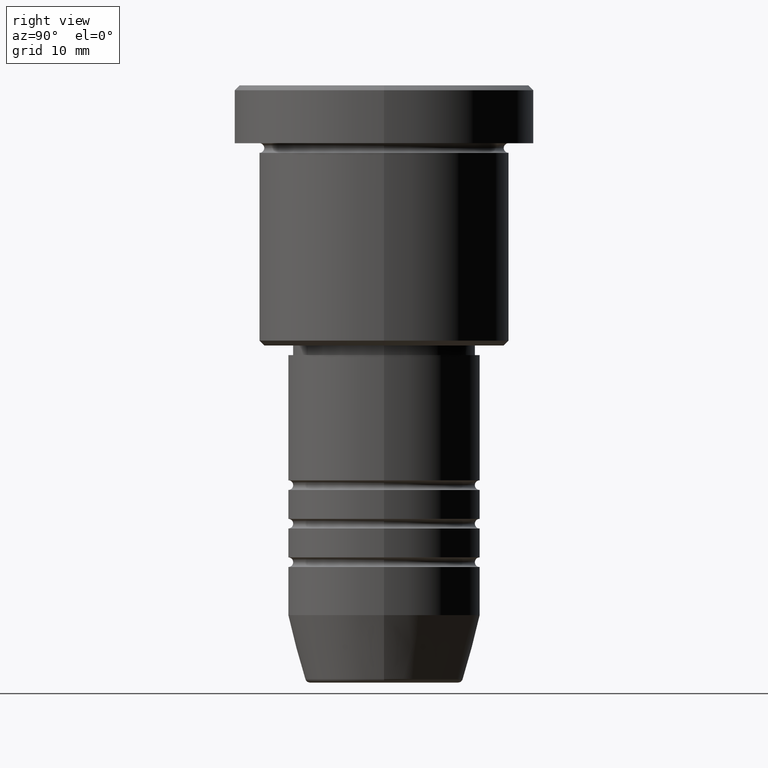
[diagram: clean part render]
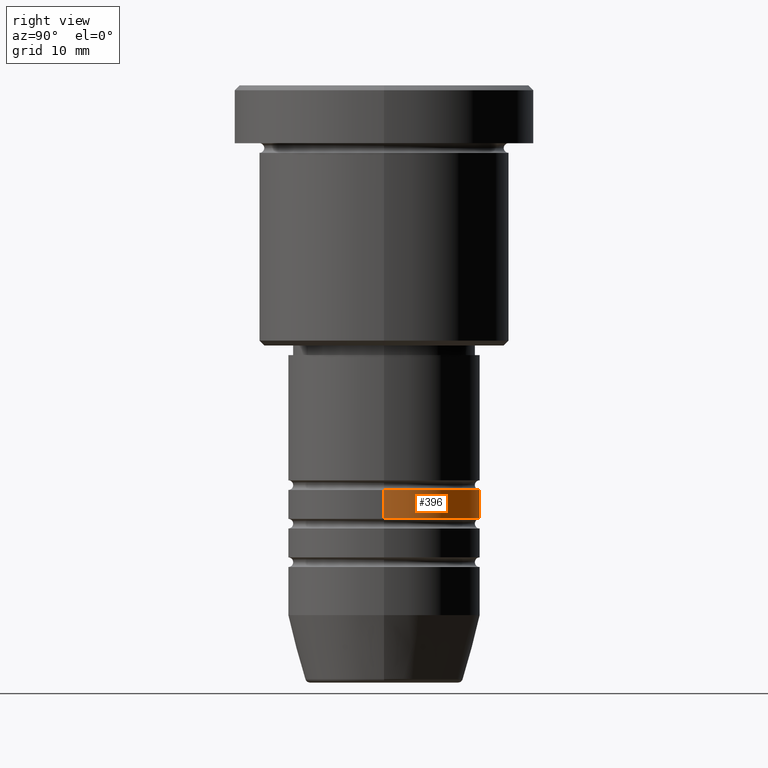
[diagram: same view with one face highlighted and labeled with its STEP entity id]
A machine part, right view. The second image highlights one B-rep face of the part: STEP entity #396.
In plain terms, the highlighted cylindrical surface (partial cylindrical patch) has radius 10 mm, axis along (-0, -0, 1).
Its self-contained STEP definition (entity closure, byte-faithful):
#17 = VECTOR ( 'NONE', #909, 1000.000000000000000 ) ;
#90 = DIRECTION ( 'NONE',  ( -0.000000000000000000, -0.000000000000000000, 1.000000000000000000 ) ) ;
#136 = EDGE_CURVE ( 'NONE', #966, #533, #643, .T. ) ;
#158 = ORIENTED_EDGE ( 'NONE', *, *, #878, .F. ) ;
#196 = DIRECTION ( 'NONE',  ( 1.000000000000000000, 0.000000000000000000, 0.000000000000000000 ) ) ;
#207 = CIRCLE ( 'NONE', #1074, 10.00000000000000000 ) ;
#209 = DIRECTION ( 'NONE',  ( -0.000000000000000000, -0.000000000000000000, 1.000000000000000000 ) ) ;
#263 = EDGE_CURVE ( 'NONE', #1103, #966, #286, .T. ) ;
#286 = CIRCLE ( 'NONE', #440, 10.00000000000000178 ) ;
#343 = DIRECTION ( 'NONE',  ( 1.000000000000000000, 0.000000000000000000, 0.000000000000000000 ) ) ;
#372 = CARTESIAN_POINT ( 'NONE',  ( -10.00000000000000178, 1.224646799147353454E-15, 0.000000000000000000 ) ) ;
#394 = VERTEX_POINT ( 'NONE', #599 ) ;
#396 = ADVANCED_FACE ( 'NONE', ( #514 ), #1140, .T. ) ;
#440 = AXIS2_PLACEMENT_3D ( 'NONE', #655, #209, #573 ) ;
#474 = DIRECTION ( 'NONE',  ( -0.000000000000000000, -0.000000000000000000, 1.000000000000000000 ) ) ;
#514 = FACE_OUTER_BOUND ( 'NONE', #980, .T. ) ;
#533 = VERTEX_POINT ( 'NONE', #1169 ) ;
#573 = DIRECTION ( 'NONE',  ( 1.000000000000000000, 0.000000000000000000, 0.000000000000000000 ) ) ;
#574 = CARTESIAN_POINT ( 'NONE',  ( 10.00000000000000178, 0.000000000000000000, -44.99999999999990763 ) ) ;
#599 = CARTESIAN_POINT ( 'NONE',  ( 10.00000000000000000, 0.000000000000000000, -41.99999999999989342 ) ) ;
#600 = ORIENTED_EDGE ( 'NONE', *, *, #136, .T. ) ;
#643 = LINE ( 'NONE', #372, #935 ) ;
#655 = CARTESIAN_POINT ( 'NONE',  ( 0.000000000000000000, 0.000000000000000000, -44.99999999999990763 ) ) ;
#664 = AXIS2_PLACEMENT_3D ( 'NONE', #1078, #704, #343 ) ;
#704 = DIRECTION ( 'NONE',  ( -0.000000000000000000, -0.000000000000000000, 1.000000000000000000 ) ) ;
#720 = ORIENTED_EDGE ( 'NONE', *, *, #819, .F. ) ;
#734 = CARTESIAN_POINT ( 'NONE',  ( -10.00000000000000178, 1.224646799147353454E-15, -44.99999999999990763 ) ) ;
#819 = EDGE_CURVE ( 'NONE', #1103, #394, #880, .T. ) ;
#847 = CARTESIAN_POINT ( 'NONE',  ( 0.000000000000000000, 0.000000000000000000, -41.99999999999989342 ) ) ;
#878 = EDGE_CURVE ( 'NONE', #394, #533, #207, .T. ) ;
#880 = LINE ( 'NONE', #985, #17 ) ;
#909 = DIRECTION ( 'NONE',  ( -0.000000000000000000, -0.000000000000000000, 1.000000000000000000 ) ) ;
#935 = VECTOR ( 'NONE', #90, 1000.000000000000000 ) ;
#966 = VERTEX_POINT ( 'NONE', #734 ) ;
#980 = EDGE_LOOP ( 'NONE', ( #1071, #600, #158, #720 ) ) ;
#985 = CARTESIAN_POINT ( 'NONE',  ( 10.00000000000000178, 0.000000000000000000, 0.000000000000000000 ) ) ;
#1071 = ORIENTED_EDGE ( 'NONE', *, *, #263, .T. ) ;
#1074 = AXIS2_PLACEMENT_3D ( 'NONE', #847, #474, #196 ) ;
#1078 = CARTESIAN_POINT ( 'NONE',  ( 0.000000000000000000, 0.000000000000000000, 0.000000000000000000 ) ) ;
#1103 = VERTEX_POINT ( 'NONE', #574 ) ;
#1140 = CYLINDRICAL_SURFACE ( 'NONE', #664, 10.00000000000000178 ) ;
#1169 = CARTESIAN_POINT ( 'NONE',  ( -10.00000000000000000, 1.224646799147353256E-15, -41.99999999999989342 ) ) ;